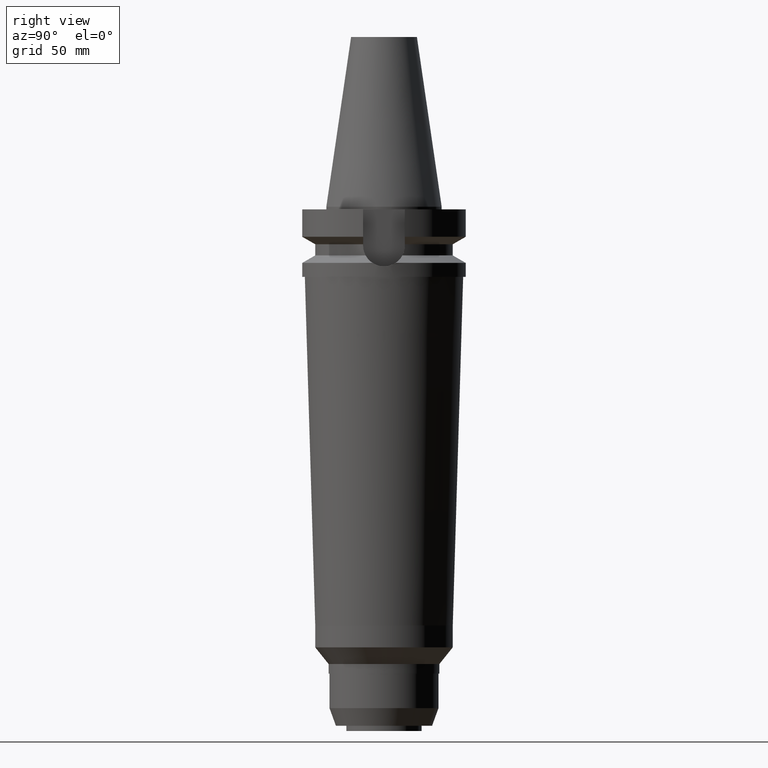
[diagram: clean part render]
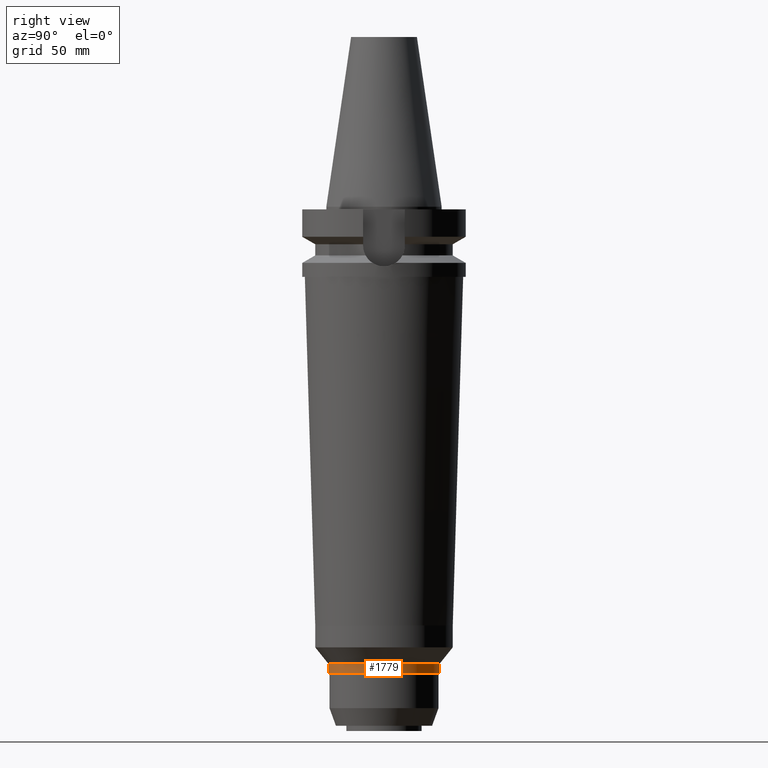
[diagram: same view with one face highlighted and labeled with its STEP entity id]
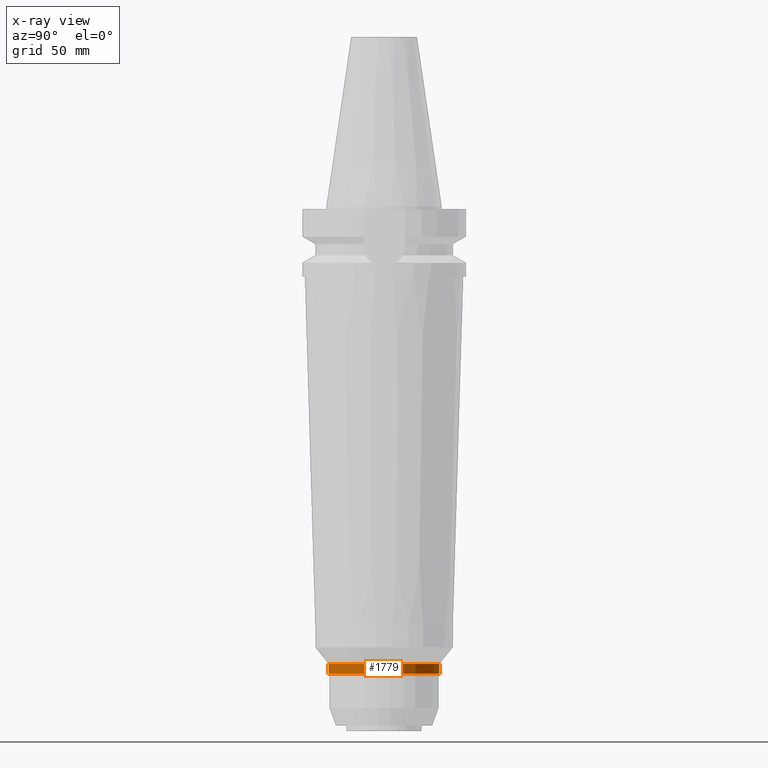
[diagram: x-ray of the same camera — body ghosted, the highlighted face saturated]
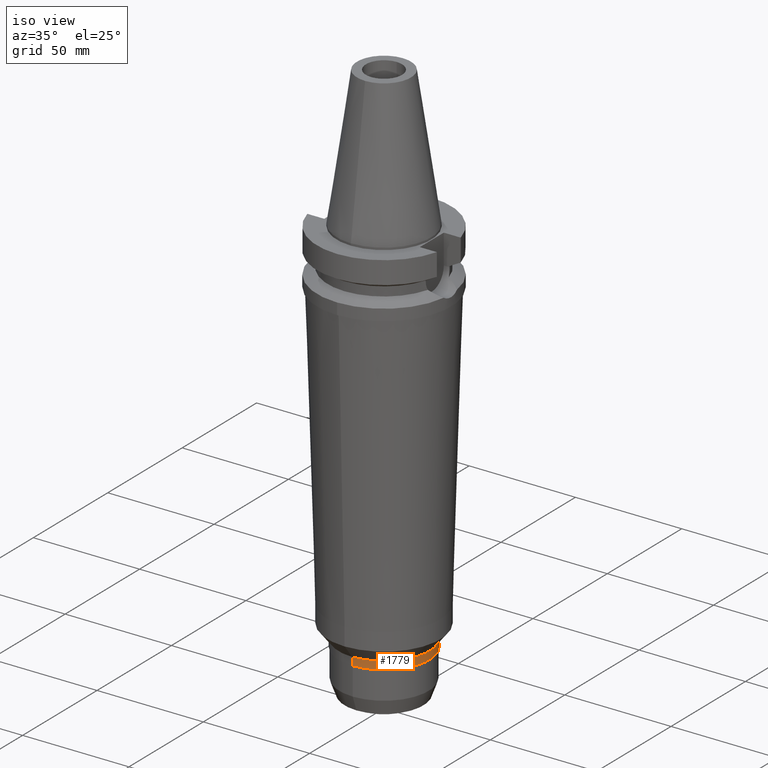
[diagram: same view with one face highlighted and labeled with its STEP entity id]
A machine part, right view. The second image highlights one B-rep face of the part: STEP entity #1779.
The next image is the same camera in x-ray: the body ghosted, the highlighted face saturated — about 0% of this face is hidden behind the body in this view.
A second angle (iso view) of the same face is appended — the face is thin or edge-on in the first view.
In plain terms, the highlighted cylindrical surface (partial cylindrical patch) has radius 21.35 mm, axis along (0, 0, 1).
Its self-contained STEP definition (entity closure, byte-faithful):
#670=CARTESIAN_POINT('',(0.E0,0.E0,-1.762E2));
#671=DIRECTION('',(0.E0,0.E0,-1.E0));
#672=DIRECTION('',(0.E0,1.E0,0.E0));
#673=AXIS2_PLACEMENT_3D('',#670,#671,#672);
#686=DIRECTION('',(0.E0,-6.001205538517E-13,-1.E0));
#687=VECTOR('',#686,3.699999999998E0);
#688=CARTESIAN_POINT('',(0.E0,2.135E1,-1.762E2));
#689=LINE('',#688,#687);
#693=DIRECTION('',(0.E0,6.001205538517E-13,-1.E0));
#694=VECTOR('',#693,3.699999999998E0);
#695=CARTESIAN_POINT('',(0.E0,-2.135E1,-1.762E2));
#696=LINE('',#695,#694);
#700=CARTESIAN_POINT('',(0.E0,0.E0,-1.799E2));
#701=DIRECTION('',(0.E0,0.E0,1.E0));
#702=DIRECTION('',(0.E0,-1.E0,0.E0));
#703=AXIS2_PLACEMENT_3D('',#700,#701,#702);
#1199=CARTESIAN_POINT('',(0.E0,2.135E1,-1.762E2));
#1200=VERTEX_POINT('',#1199);
#1201=CARTESIAN_POINT('',(0.E0,-2.135E1,-1.762E2));
#1202=VERTEX_POINT('',#1201);
#1203=CARTESIAN_POINT('',(0.E0,2.135E1,-1.799E2));
#1204=VERTEX_POINT('',#1203);
#1205=CARTESIAN_POINT('',(0.E0,-2.135E1,-1.799E2));
#1206=VERTEX_POINT('',#1205);
#1765=CARTESIAN_POINT('',(0.E0,0.E0,-2.1537E2));
#1766=DIRECTION('',(0.E0,0.E0,1.E0));
#1767=DIRECTION('',(0.E0,1.E0,0.E0));
#1768=AXIS2_PLACEMENT_3D('',#1765,#1766,#1767);
#1769=CYLINDRICAL_SURFACE('',#1768,2.135E1);
#1771=ORIENTED_EDGE('',*,*,#1770,.T.);
#1773=ORIENTED_EDGE('',*,*,#1772,.F.);
#1775=ORIENTED_EDGE('',*,*,#1774,.F.);
#1776=ORIENTED_EDGE('',*,*,#1758,.F.);
#1777=EDGE_LOOP('',(#1771,#1773,#1775,#1776));
#1778=FACE_OUTER_BOUND('',#1777,.F.);
#674=CIRCLE('',#673,2.135E1);
#704=CIRCLE('',#703,2.135E1);
#1758=EDGE_CURVE('',#1200,#1202,#674,.T.);
#1770=EDGE_CURVE('',#1200,#1204,#689,.T.);
#1772=EDGE_CURVE('',#1206,#1204,#704,.T.);
#1774=EDGE_CURVE('',#1202,#1206,#696,.T.);
#1779=ADVANCED_FACE('',(#1778),#1769,.T.);